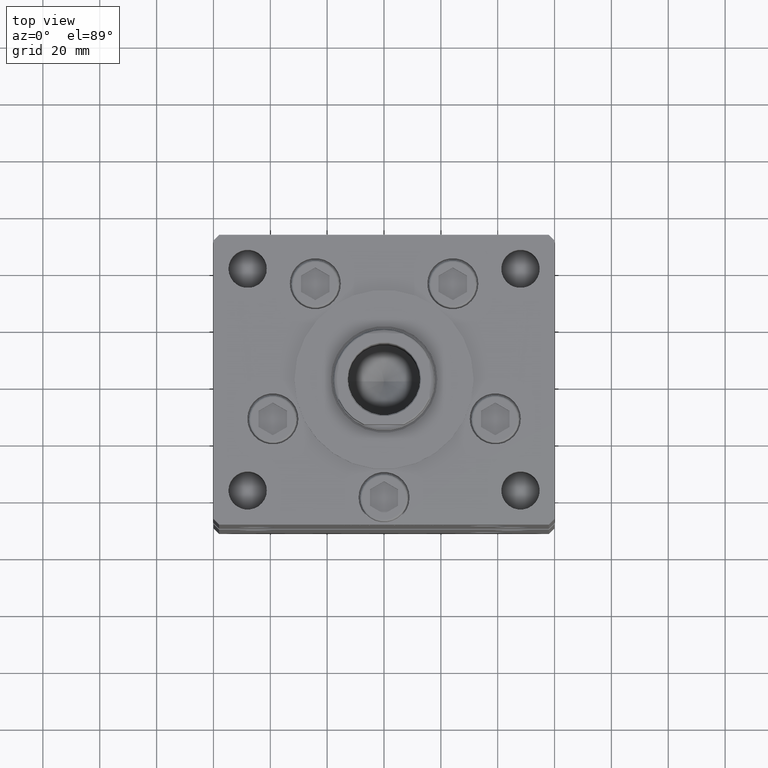
[diagram: clean part render]
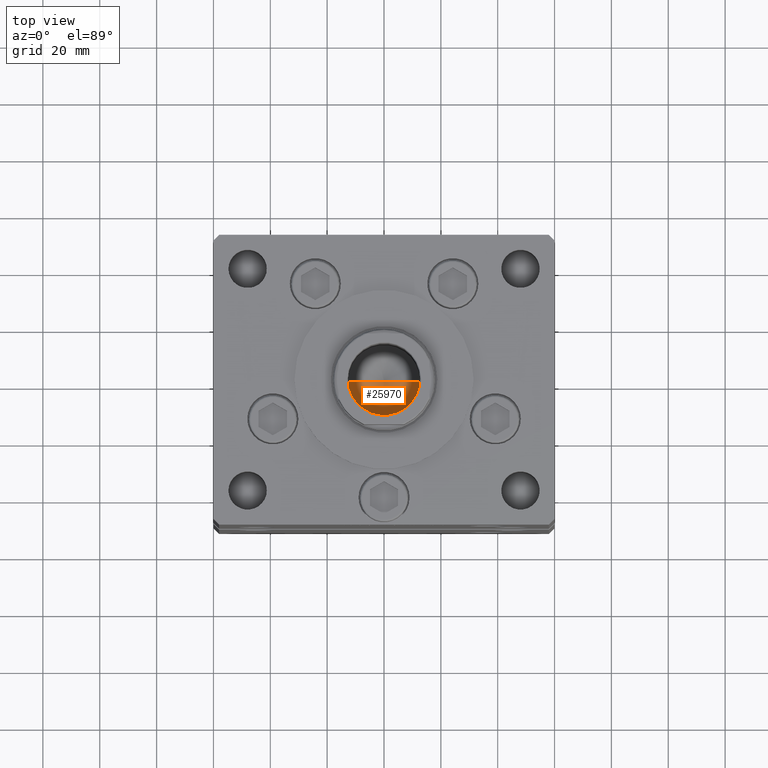
[diagram: same view with one face highlighted and labeled with its STEP entity id]
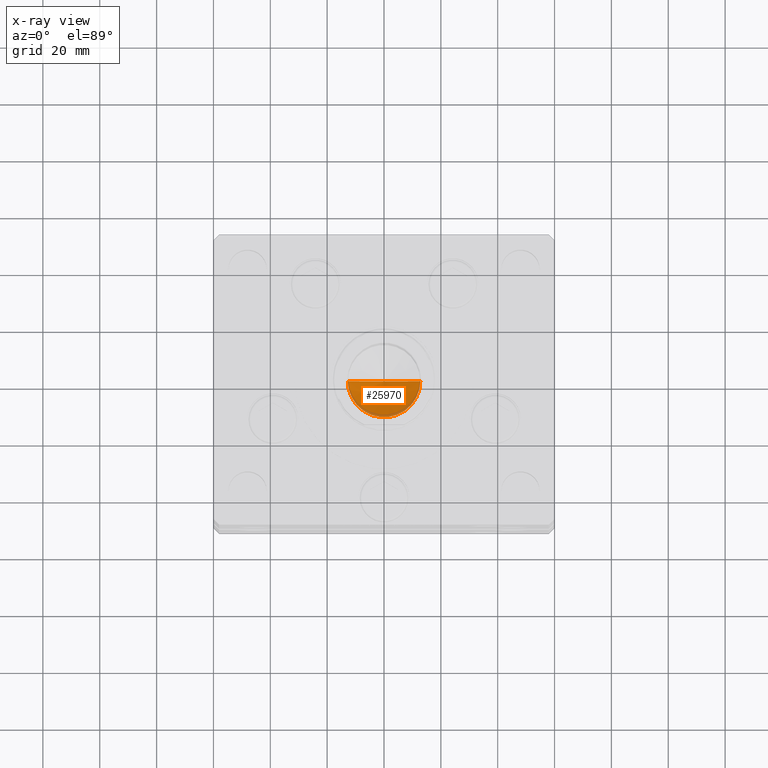
[diagram: x-ray of the same camera — body ghosted, the highlighted face saturated]
A machine part, top view. The second image highlights one B-rep face of the part: STEP entity #25970.
The next image is the same camera in x-ray: the body ghosted, the highlighted face saturated — about 8% of this face is hidden behind the body in this view.
In plain terms, the highlighted conical surface has half-angle 59 deg.
Its self-contained STEP definition (entity closure, byte-faithful):
#347 = EDGE_CURVE ( 'NONE', #41464, #34721, #39772, .T. ) ;
#2385 = LINE ( 'NONE', #43934, #27865 ) ;
#6477 = FACE_OUTER_BOUND ( 'NONE', #28162, .T. ) ;
#6935 = DIRECTION ( 'NONE',  ( 0.8571673007021117785, 0.000000000000000000, 0.5150380749100550437 ) ) ;
#9367 = CARTESIAN_POINT ( 'NONE',  ( -12.74999999999999112, 1.561424668912874125E-15, 124.2500000000000142 ) ) ;
#9961 = CARTESIAN_POINT ( 'NONE',  ( 12.74999999999999112, 0.000000000000000000, 124.2500000000000142 ) ) ;
#14437 = VERTEX_POINT ( 'NONE', #9961 ) ;
#14919 = CARTESIAN_POINT ( 'NONE',  ( 0.000000000000000000, 0.000000000000000000, 124.2500000000000142 ) ) ;
#15187 = DIRECTION ( 'NONE',  ( 1.000000000000000000, 0.000000000000000000, 0.000000000000000000 ) ) ;
#16898 = DIRECTION ( 'NONE',  ( -0.8571673007021117785, 1.049727191138617956E-16, 0.5150380749100550437 ) ) ;
#17366 = EDGE_CURVE ( 'NONE', #41464, #14437, #2385, .T. ) ;
#18673 = VECTOR ( 'NONE', #16898, 1000.000000000000000 ) ;
#18840 = DIRECTION ( 'NONE',  ( -0.000000000000000000, -0.000000000000000000, 1.000000000000000000 ) ) ;
#19400 = CARTESIAN_POINT ( 'NONE',  ( -12.74999999999999112, 1.561424668912874125E-15, 124.2500000000000142 ) ) ;
#21161 = CARTESIAN_POINT ( 'NONE',  ( -1.307202896762960287E-14, 0.000000000000000000, 116.5890271073986213 ) ) ;
#24260 = ORIENTED_EDGE ( 'NONE', *, *, #347, .T. ) ;
#25970 = ADVANCED_FACE ( 'NONE', ( #6477 ), #28015, .F. ) ;
#27865 = VECTOR ( 'NONE', #6935, 1000.000000000000000 ) ;
#28015 = CONICAL_SURFACE ( 'NONE', #51969, 12.74999999999999112, 1.029744258676653423 ) ;
#28162 = EDGE_LOOP ( 'NONE', ( #42441, #24260, #42384 ) ) ;
#31144 = DIRECTION ( 'NONE',  ( 1.000000000000000000, 0.000000000000000000, 0.000000000000000000 ) ) ;
#31252 = DIRECTION ( 'NONE',  ( -0.000000000000000000, -0.000000000000000000, 1.000000000000000000 ) ) ;
#31409 = CARTESIAN_POINT ( 'NONE',  ( 0.000000000000000000, 0.000000000000000000, 124.2500000000000142 ) ) ;
#34721 = VERTEX_POINT ( 'NONE', #9367 ) ;
#39772 = LINE ( 'NONE', #19400, #18673 ) ;
#41356 = AXIS2_PLACEMENT_3D ( 'NONE', #14919, #31252, #15187 ) ;
#41464 = VERTEX_POINT ( 'NONE', #21161 ) ;
#42384 = ORIENTED_EDGE ( 'NONE', *, *, #43457, .T. ) ;
#42441 = ORIENTED_EDGE ( 'NONE', *, *, #17366, .F. ) ;
#43457 = EDGE_CURVE ( 'NONE', #34721, #14437, #48208, .T. ) ;
#43934 = CARTESIAN_POINT ( 'NONE',  ( 12.74999999999999112, 0.000000000000000000, 124.2500000000000142 ) ) ;
#48208 = CIRCLE ( 'NONE', #41356, 12.74999999999999112 ) ;
#51969 = AXIS2_PLACEMENT_3D ( 'NONE', #31409, #18840, #31144 ) ;